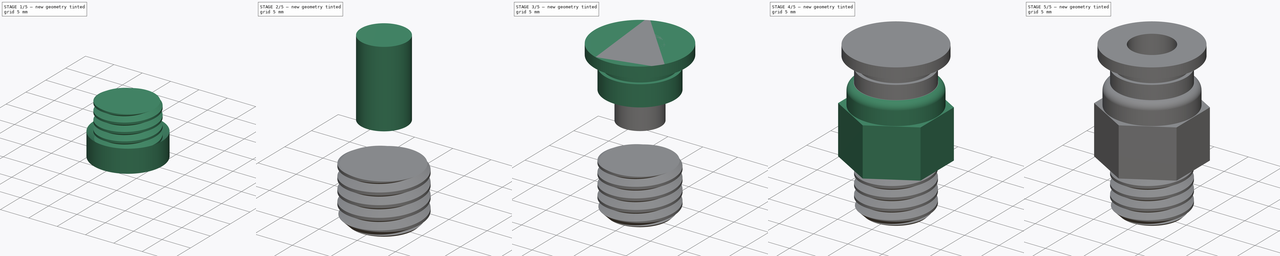
[diagram: build sequence overview — one tinted view per stage of 5, left to right]
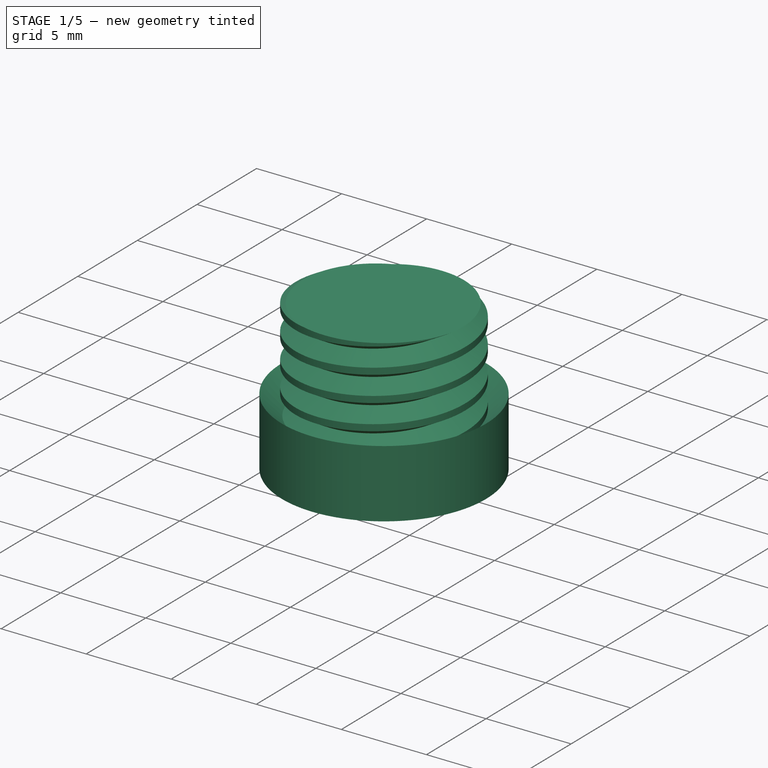
[diagram: stage 1 of 5 — iso view after this stage's code; geometry added in this stage tinted green]
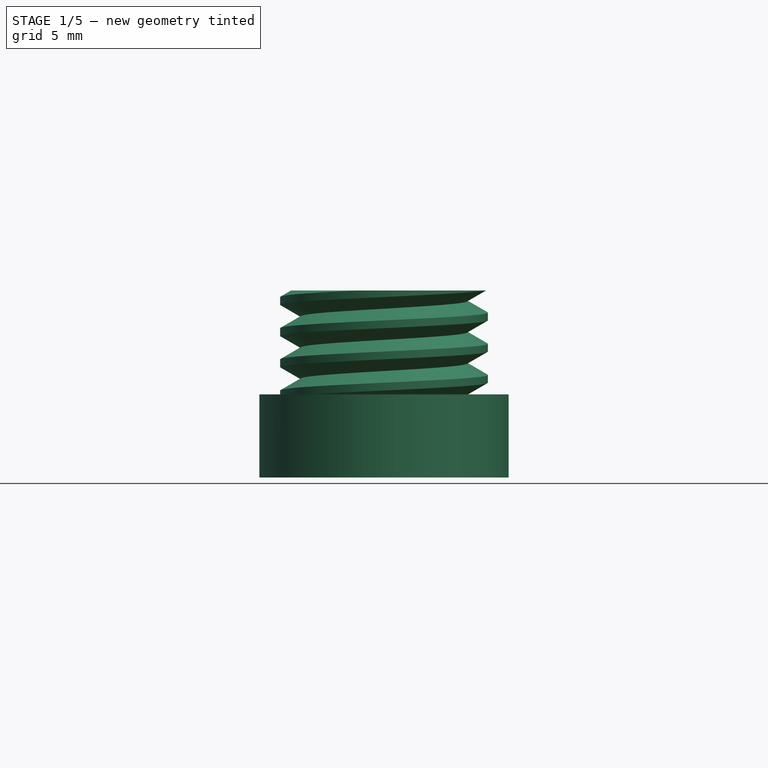
[diagram: stage 1 of 5 — front view after this stage's code; geometry added in this stage tinted green]
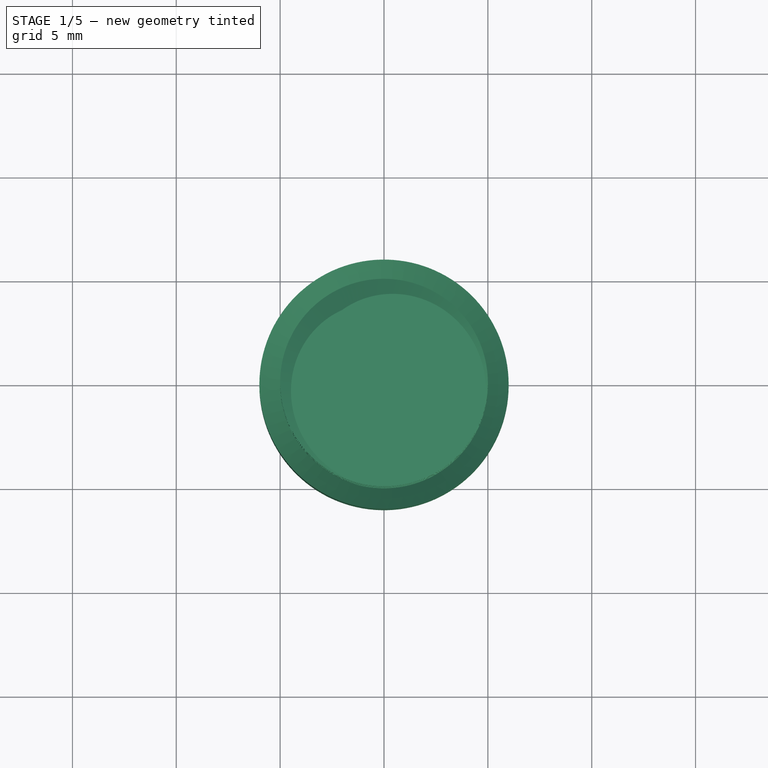
[diagram: stage 1 of 5 — top view after this stage's code; geometry added in this stage tinted green]
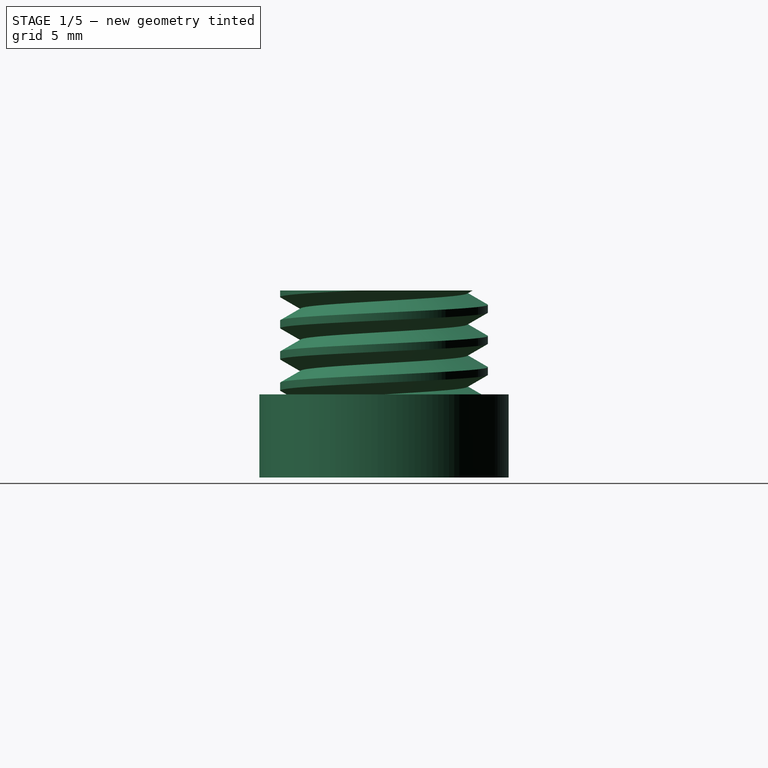
[diagram: stage 1 of 5 — right view after this stage's code; geometry added in this stage tinted green]
FCSTD DOCUMENT  (FreeCAD 0.14R3702 (Git))
Label: racor
License: CC-BY 3.0
LicenseURL: http://creativecommons.org/licenses/by/3.0/
objects: Part::Cylinder×7, Sketcher::SketchObject×4, Part::MultiFuse×4, Part::Cut×4, Part::Feature×2, PartDesign::Pad×1, PartDesign::Fillet×1, Part::Helix×1, Part::Sweep×1, PartDesign::Revolution×1, PartDesign::Pocket×1
note: 30 computed .brp shape members not serialized (recipe doc carries the construction recipe); baked Part::Feature solids carry a one-line shape summary decoded from their .brp

FEATURE [Part::Cylinder] Cylinder  label="Cilindro"
  Angle = 360
  Height = 7
  Radius = 5
FEATURE [Part::Helix] Helix  label="Helice"
  Angle = 0
  Height = 9
  LocalCoord = 0
  Pitch = 1.5
  Radius = 5
  Style = 1
FEATURE [Sketcher::SketchObject] Sketch002
  Placement = pos=(0,0,0) rot=(-1,0,0;4.71239rad)
  sketch-geometry (3):
    g0: LineSegment StartX=4.02596 StartY=0 StartZ=0 EndX=5.325 EndY=0.75 EndZ=0
    g1: LineSegment StartX=5.325 StartY=0.75 StartZ=0 EndX=5.325 EndY=-0.75 EndZ=0
    g2: LineSegment StartX=5.325 StartY=-0.75 StartZ=0 EndX=4.02596 EndY=0 EndZ=0
  constraints (9):
    c: Coincident(g0,g1)
    c: Coincident(g1,g2)
    c: Coincident(g2,g0)
    c: Vertical(g1)
    c: DistanceY(g1) = -1.5
    c: Equal(g0,g2)
    c: Angle(g2,g0) = 1.0472
    c: PointOnObject(g0,g-1)
    c: DistanceX(g-1,g0) = 5.325
FEATURE [Part::Sweep] Sweep
  Frenet = true
  Placement = pos=(0,0,-1) rot=(0,0,1;0rad)
  Sections = -> [Sketch002]
  Solid = true
  Spine = -> Helix [Edge1]
  Transition = 1
FEATURE [Part::Feature] Chamfer001  label="Terminada sin rosca"
  shape: bbox 13 x 13.86 x 22 mm, 29 faces (baked)
FEATURE [Part::Cut] Cut002
  Base = -> Cylinder
  Tool = -> Sweep
FEATURE [Sketcher::SketchObject] Sketch003
  Placement = pos=(0,0,0) rot=(-1,0,0;4.71239rad)
  sketch-geometry (3):
    g0: LineSegment StartX=4 StartY=0 StartZ=0 EndX=6 EndY=2 EndZ=0
    g1: LineSegment StartX=6 StartY=2 StartZ=0 EndX=6 EndY=-2 EndZ=0
    g2: LineSegment StartX=6 StartY=-2 StartZ=0 EndX=4 EndY=0 EndZ=0
  constraints (9):
    c: Coincident(g0,g1)
    c: Vertical(g1)
    c: Coincident(g1,g2)
    c: Coincident(g2,g0)
    c: Equal(g0,g2)
    c: Angle(g2,g0) = 1.5708
    c: DistanceY(g1) = -4
    c: PointOnObject(g0,g-1)
    c: DistanceX(g-1,g0) = 4
FEATURE [PartDesign::Revolution] Revolution
  Angle = 360
  Axis = (0,0,1)
  Base = (0,0,0)
  Placement = pos=(0,0,0) rot=(-1,0,0;4.71239rad)
  ReferenceAxis = -> Sketch003 [V_Axis]
  Reversed = true
  Sketch = -> Sketch003
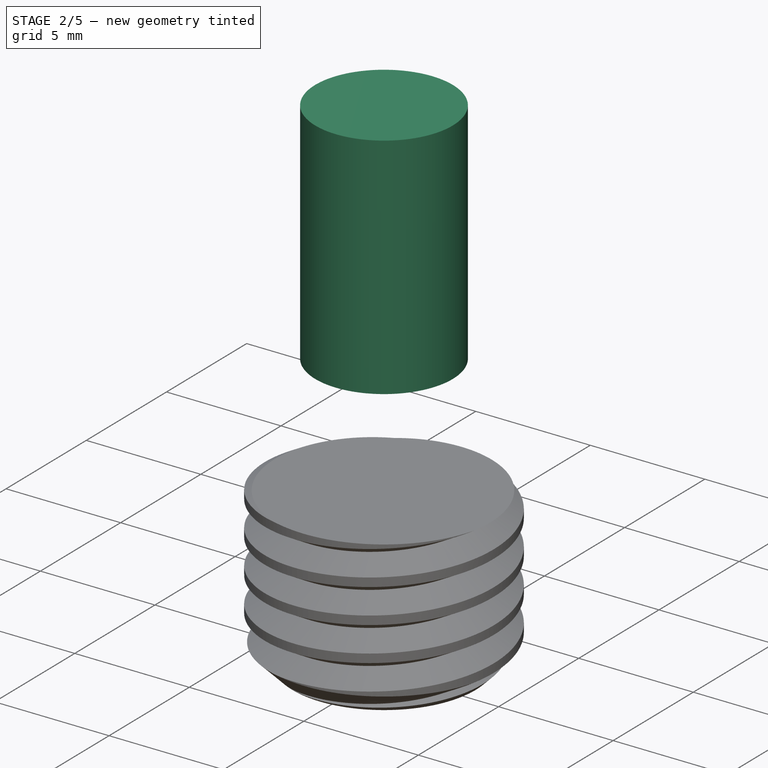
[diagram: stage 2 of 5 — iso view after this stage's code; geometry added in this stage tinted green]
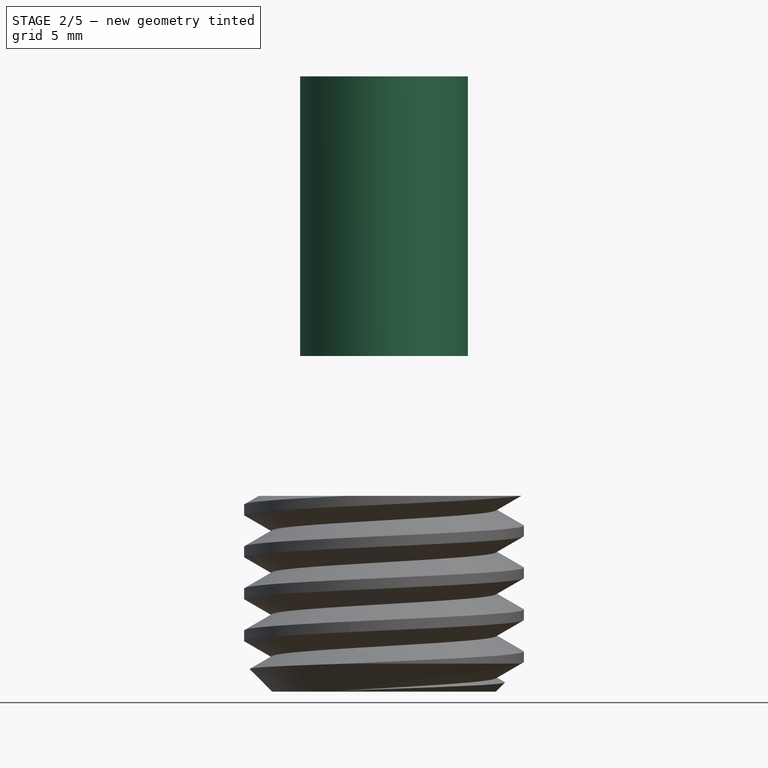
[diagram: stage 2 of 5 — front view after this stage's code; geometry added in this stage tinted green]
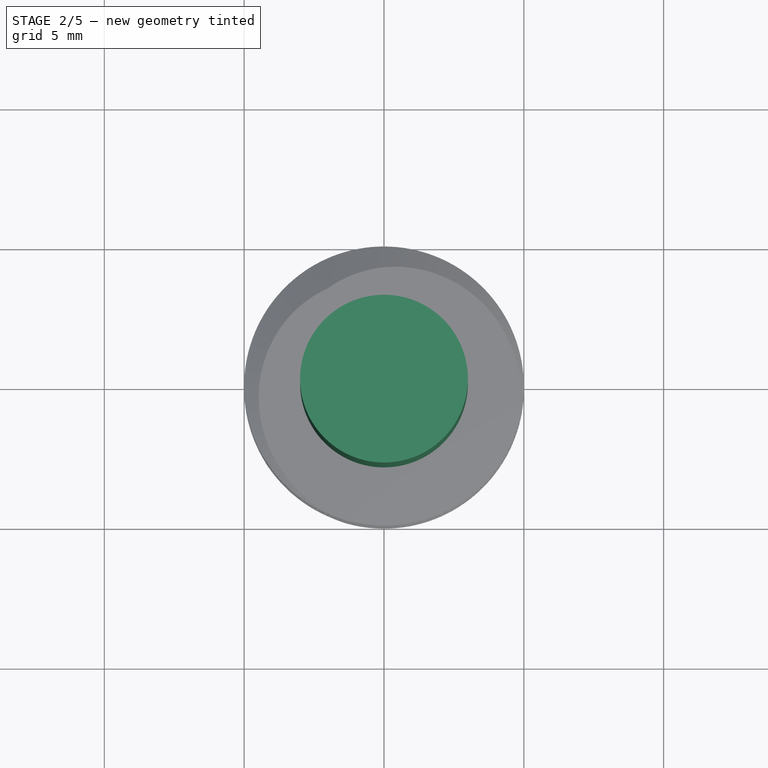
[diagram: stage 2 of 5 — top view after this stage's code; geometry added in this stage tinted green]
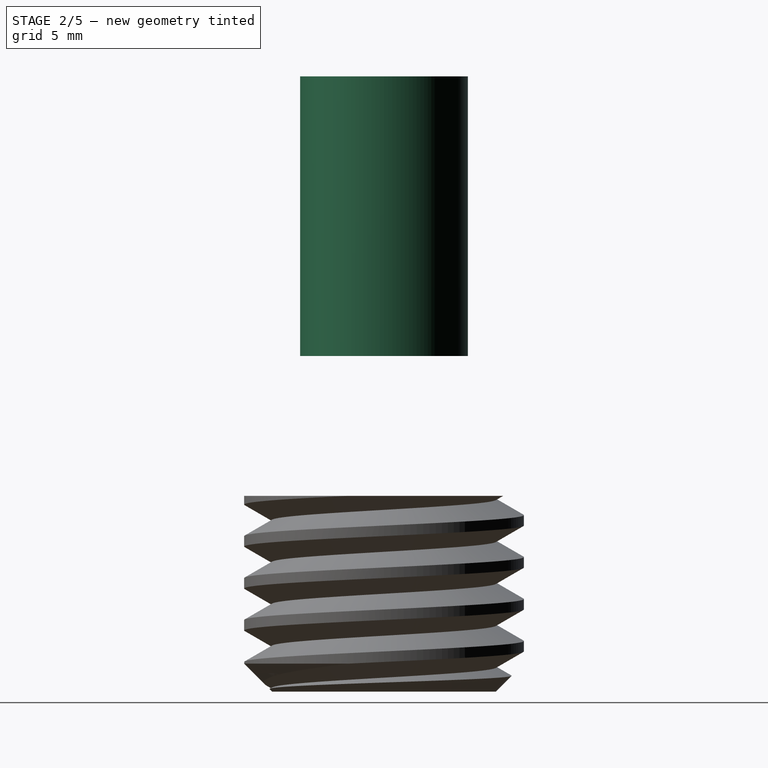
[diagram: stage 2 of 5 — right view after this stage's code; geometry added in this stage tinted green]
FEATURE [Part::Cylinder] Cylinder001  label="Cilindro001"
  Angle = 360
  Height = 4
  Placement = pos=(0,0,-1) rot=(0,0,1;0rad)
  Radius = 3
FEATURE [Part::Cylinder] Cylinder006  label="Cilindro006"
  Angle = 360
  Height = 10
  Placement = pos=(0,0,12) rot=(0,0,1;0rad)
  Radius = 3
FEATURE [Part::Cut] Cut
  Base = -> Cut002
  Tool = -> Cylinder001
FEATURE [Part::Cut] Cut003
  Base = -> Cut
  Tool = -> Revolution
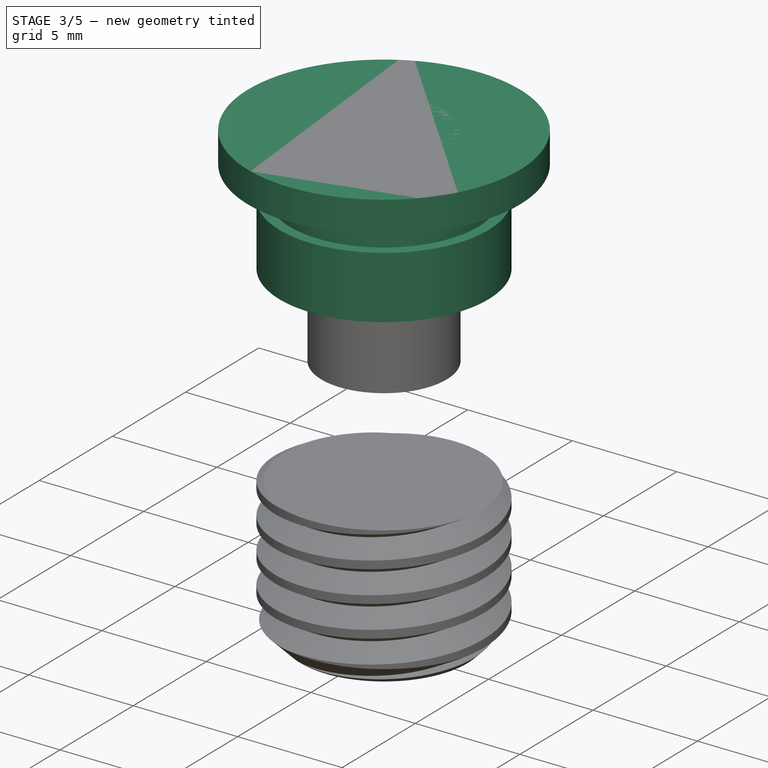
[diagram: stage 3 of 5 — iso view after this stage's code; geometry added in this stage tinted green]
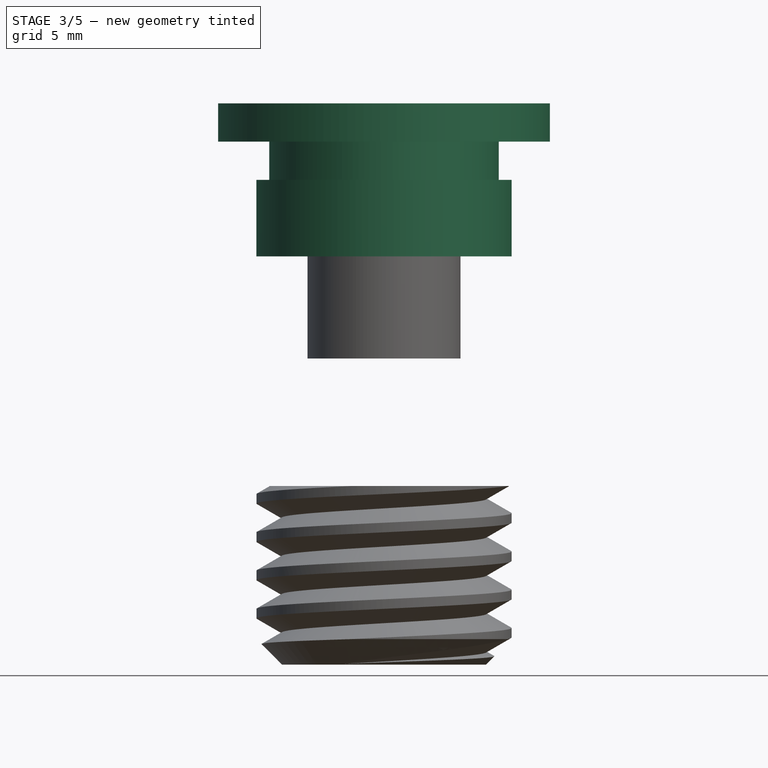
[diagram: stage 3 of 5 — front view after this stage's code; geometry added in this stage tinted green]
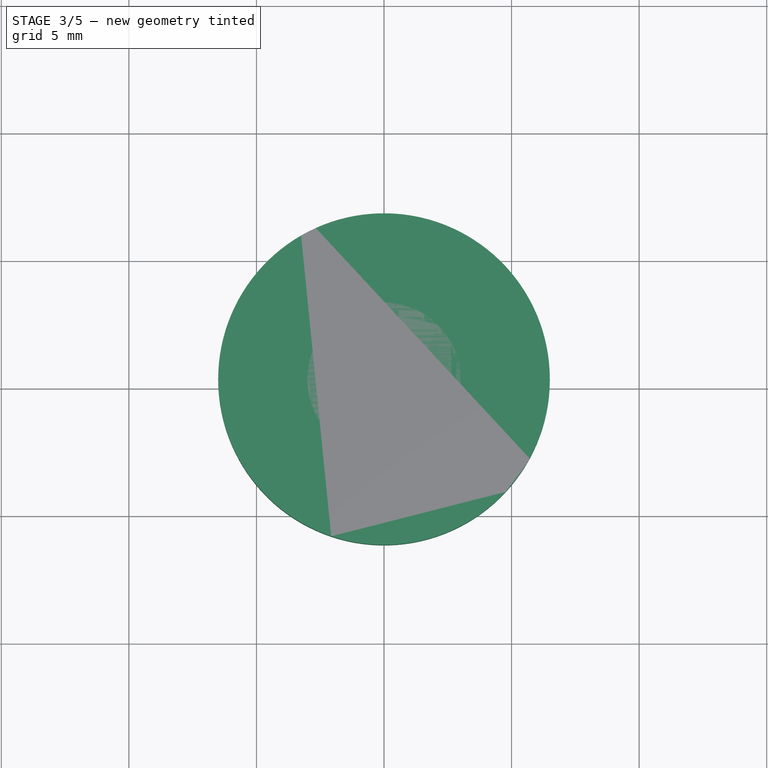
[diagram: stage 3 of 5 — top view after this stage's code; geometry added in this stage tinted green]
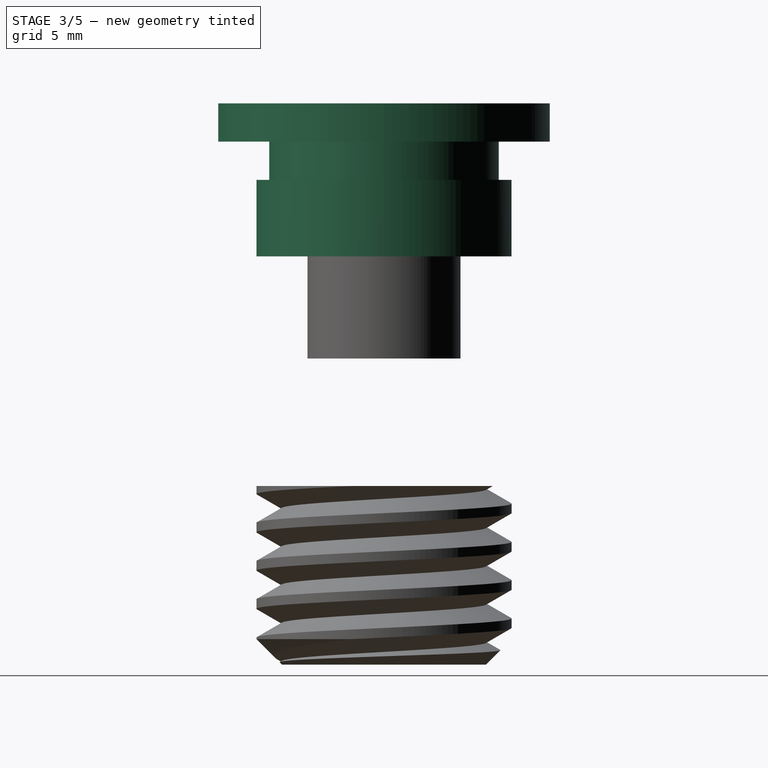
[diagram: stage 3 of 5 — right view after this stage's code; geometry added in this stage tinted green]
FEATURE [Part::Cylinder] Cylinder003  label="Cilindro003"
  Angle = 360
  Height = 3
  Placement = pos=(0,0,16) rot=(0,0,1;0rad)
  Radius = 5
FEATURE [Part::Cylinder] Cylinder004  label="Cilindro004"
  Angle = 360
  Height = 2.5
  Placement = pos=(0,0,18) rot=(0,0,1;0rad)
  Radius = 4.5
FEATURE [Part::Cylinder] Cylinder005  label="Cilindro005"
  Angle = 360
  Height = 1.5
  Placement = pos=(0,0,20.5) rot=(0,0,1;0rad)
  Radius = 6.5
FEATURE [Part::MultiFuse] Fusion001
  Shapes = -> [Cylinder004,Cylinder005]
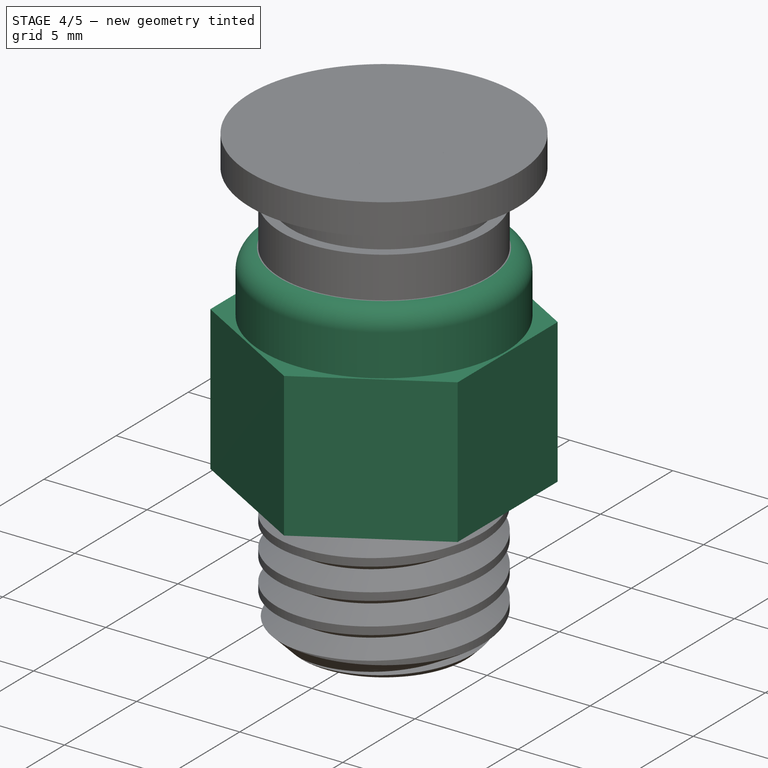
[diagram: stage 4 of 5 — iso view after this stage's code; geometry added in this stage tinted green]
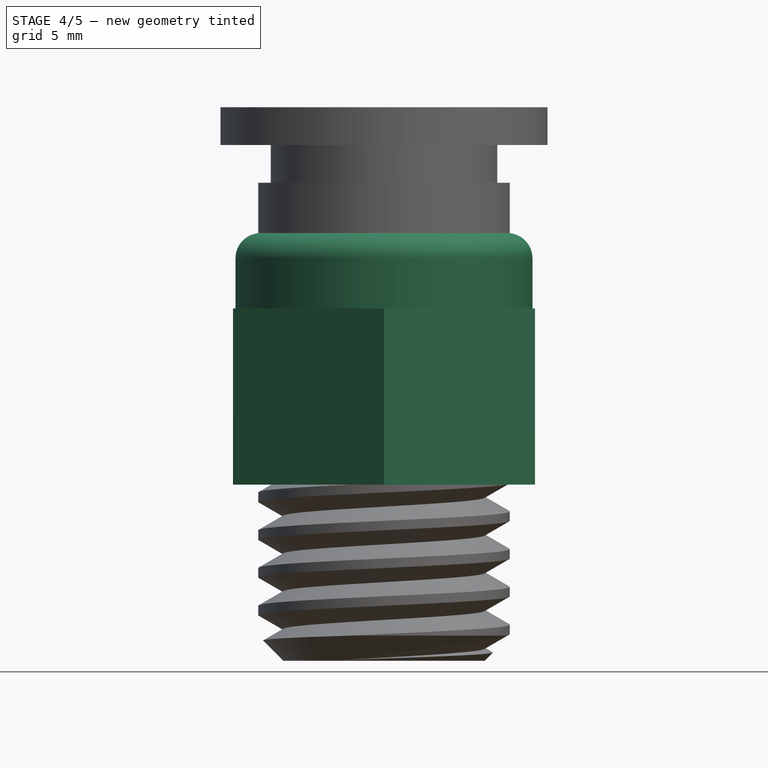
[diagram: stage 4 of 5 — front view after this stage's code; geometry added in this stage tinted green]
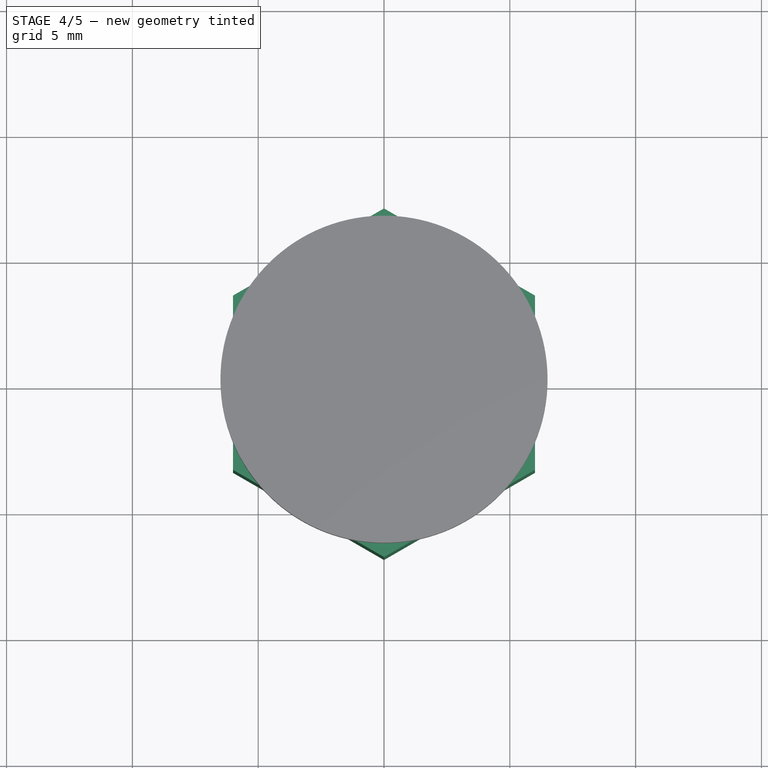
[diagram: stage 4 of 5 — top view after this stage's code; geometry added in this stage tinted green]
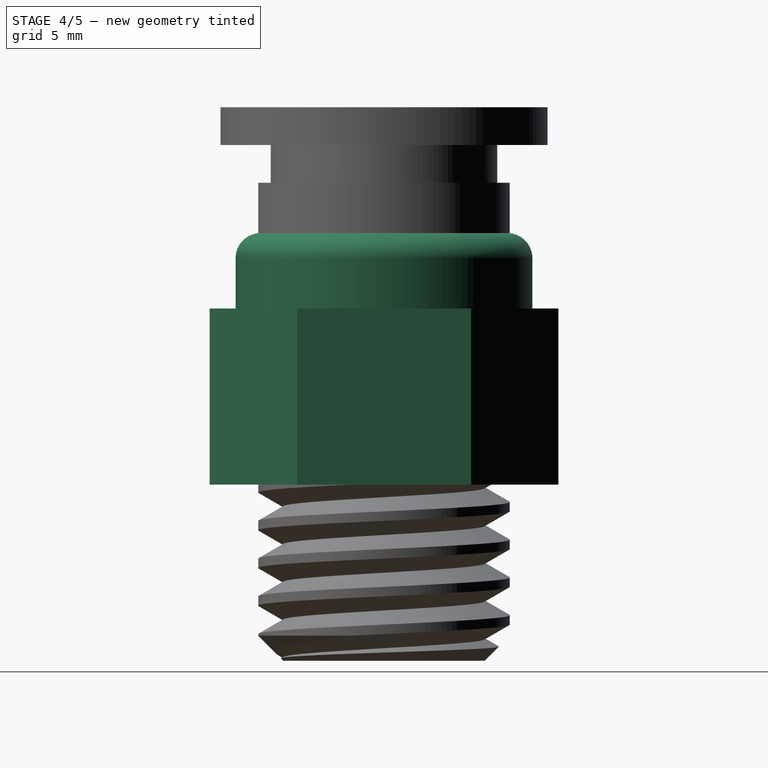
[diagram: stage 4 of 5 — right view after this stage's code; geometry added in this stage tinted green]
FEATURE [Sketcher::SketchObject] Sketch
  Placement = pos=(0,0,7) rot=(0,0,1;0rad)
  sketch-geometry (7):
    g0: LineSegment StartX=-6 StartY=3.4641 StartZ=0 EndX=0 EndY=6.9282 EndZ=0
    g1: LineSegment StartX=0 StartY=6.9282 StartZ=0 EndX=6 EndY=3.4641 EndZ=0
    g2: LineSegment StartX=6 StartY=3.4641 StartZ=0 EndX=6 EndY=-3.4641 EndZ=0
    g3: LineSegment StartX=6 StartY=-3.4641 StartZ=0 EndX=0 EndY=-6.9282 EndZ=0
    g4: LineSegment StartX=0 StartY=-6.9282 StartZ=0 EndX=-6 EndY=-3.4641 EndZ=0
    g5: LineSegment StartX=-6 StartY=-3.4641 StartZ=0 EndX=-6 EndY=3.4641 EndZ=0
    g6: LineSegment [constr] StartX=0 StartY=0 StartZ=0 EndX=-6 EndY=3.4641 EndZ=0
  constraints (20):
    c: PointOnObject(g0,g-2)
    c: Coincident(g0,g1)
    c: Coincident(g1,g2)
    c: Vertical(g2)
    c: Coincident(g2,g3)
    c: PointOnObject(g3,g-2)
    c: Coincident(g3,g4)
    c: Coincident(g4,g5)
    c: Coincident(g5,g0)
    c: Vertical(g5)
    c: Equal(g0,g1)
    c: Equal(g1,g2)
    c: Equal(g2,g3)
    c: Equal(g3,g4)
    c: Equal(g4,g5)
    c: Symmetric(g0,g3,g-1)
    c: DistanceX(g4,g2) = 12
    c: Coincident(g6,g-1)
    c: Coincident(g6,g0)
    c: Angle(g-2,g6) = 1.0472
FEATURE [PartDesign::Pad] Pad
  Length = 7
  Length2 = 100
  Placement = pos=(0,0,7) rot=(0,0,1;0rad)
  Sketch = -> Sketch
  Type = 0
FEATURE [Part::Cylinder] Cylinder002  label="Cilindro002"
  Angle = 360
  Height = 4
  Placement = pos=(0,0,13) rot=(0,0,1;0rad)
  Radius = 5.9
FEATURE [PartDesign::Fillet] Fillet
  Base = -> Cylinder002 [Edge1]
  Placement = pos=(0,0,13) rot=(0,0,1;0rad)
  Radius = 1
FEATURE [Part::MultiFuse] Fusion
  Shapes = -> [Pad,Fillet]
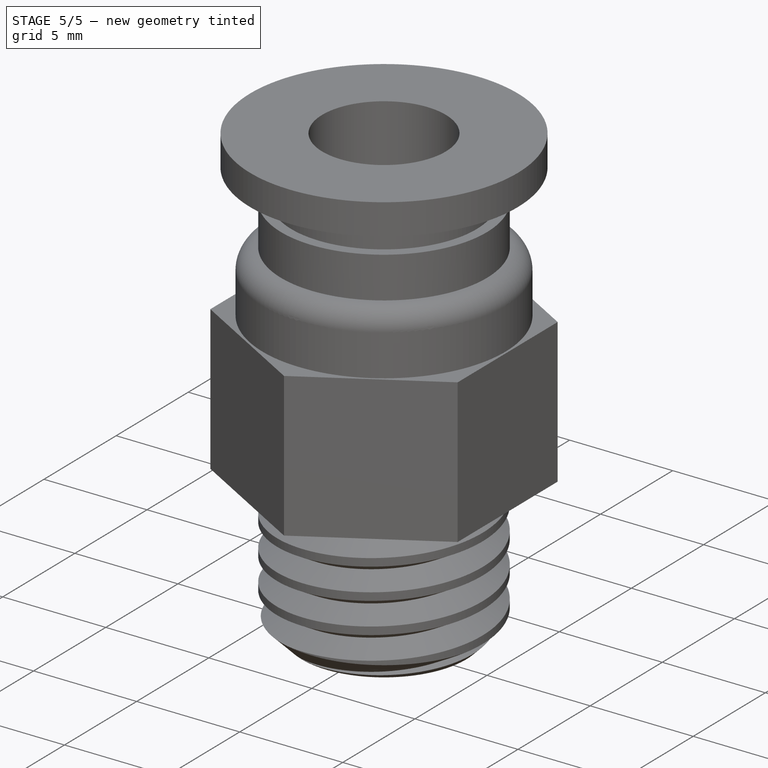
[diagram: stage 5 of 5 — iso view after this stage's code; geometry added in this stage tinted green]
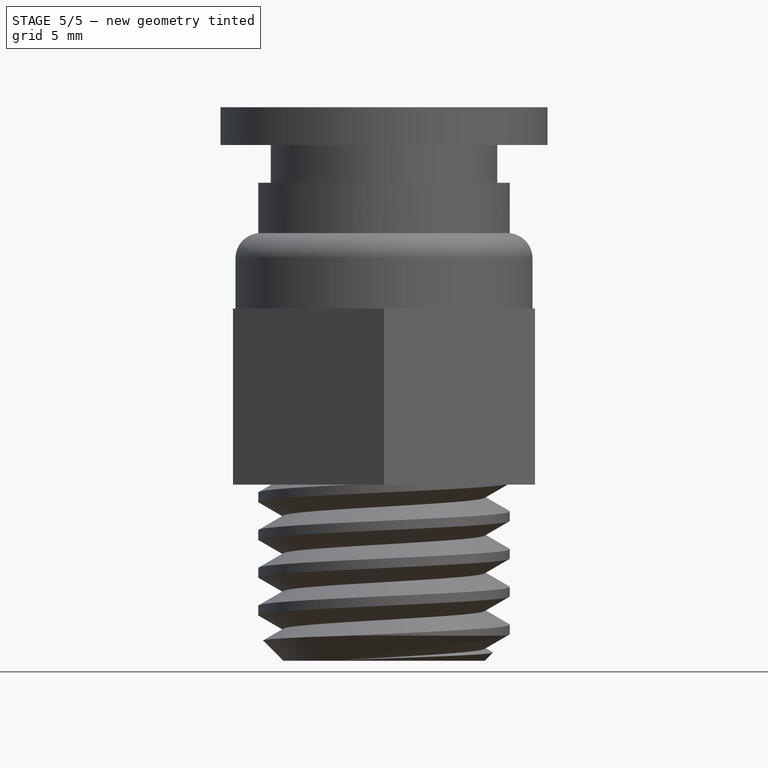
[diagram: stage 5 of 5 — front view after this stage's code; geometry added in this stage tinted green]
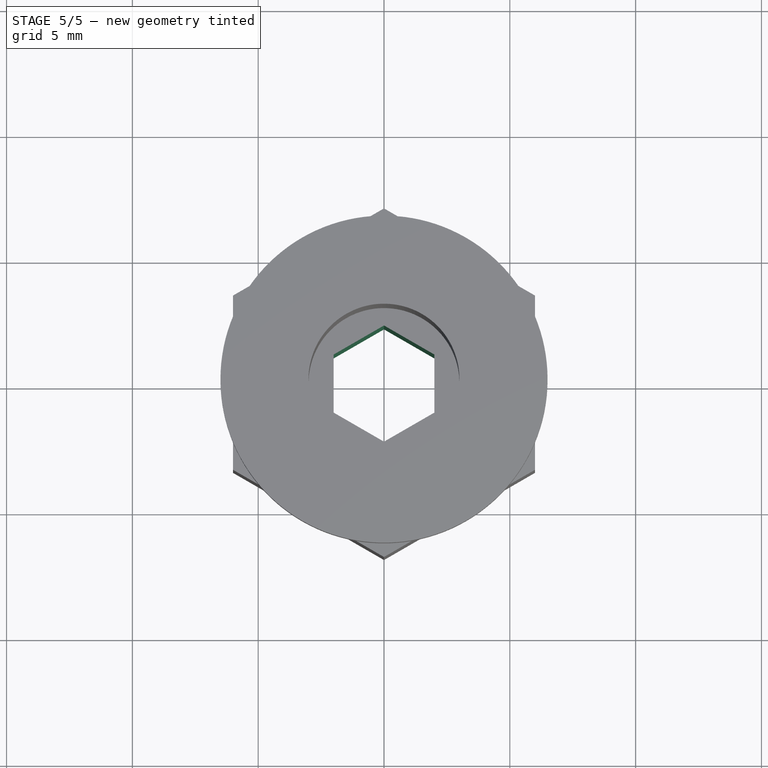
[diagram: stage 5 of 5 — top view after this stage's code; geometry added in this stage tinted green]
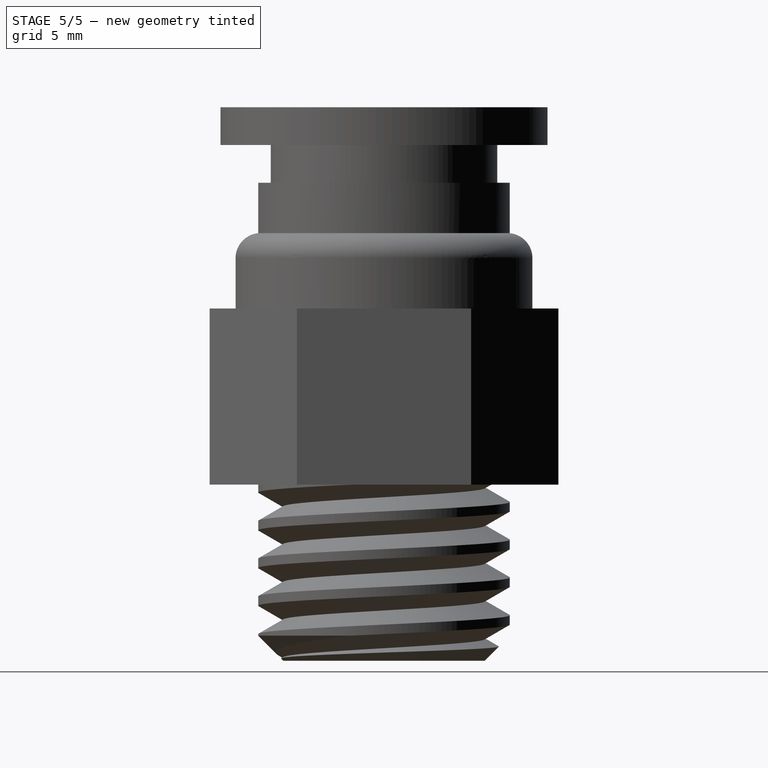
[diagram: stage 5 of 5 — right view after this stage's code; geometry added in this stage tinted green]
FEATURE [Part::MultiFuse] Fusion002
  Shapes = -> [Fusion,Cylinder003,Fusion001]
FEATURE [Part::Cut] Cut001
  Base = -> Fusion002
  Tool = -> Cylinder006
FEATURE [Part::MultiFuse] Fusion003
  Shapes = -> [Cut003,Cut001]
FEATURE [Sketcher::SketchObject] Sketch001
  Placement = pos=(0,0,3) rot=(1,0,0;3.14159rad)
  Support = -> Fusion003 [Face20]
  sketch-geometry (7):
    g0: LineSegment StartX=-2 StartY=1.1547 StartZ=0 EndX=0 EndY=2.3094 EndZ=0
    g1: LineSegment StartX=0 StartY=2.3094 StartZ=0 EndX=2 EndY=1.1547 EndZ=0
    g2: LineSegment StartX=2 StartY=1.1547 StartZ=0 EndX=2 EndY=-1.1547 EndZ=0
    g3: LineSegment StartX=2 StartY=-1.1547 StartZ=0 EndX=0 EndY=-2.3094 EndZ=0
    g4: LineSegment StartX=0 StartY=-2.3094 StartZ=0 EndX=-2 EndY=-1.1547 EndZ=0
    g5: LineSegment StartX=-2 StartY=-1.1547 StartZ=0 EndX=-2 EndY=1.1547 EndZ=0
    g6: LineSegment [constr] StartX=0 StartY=0 StartZ=0 EndX=-2 EndY=1.1547 EndZ=0
  constraints (20):
    c: PointOnObject(g0,g-2)
    c: Coincident(g0,g1)
    c: Coincident(g1,g2)
    c: Vertical(g2)
    c: Coincident(g2,g3)
    c: PointOnObject(g3,g-2)
    c: Coincident(g3,g4)
    c: Coincident(g4,g5)
    c: Coincident(g5,g0)
    c: Vertical(g5)
    c: Equal(g5,g0)
    c: Equal(g0,g1)
    c: Equal(g1,g2)
    c: Equal(g2,g3)
    c: Equal(g3,g4)
    c: Coincident(g6,g-1)
    c: Coincident(g6,g0)
    c: Angle(g-2,g6) = 1.0472
    c: Symmetric(g0,g3,g-1)
    c: DistanceX(g4,g2) = 4
FEATURE [PartDesign::Pocket] Pocket  label="Terminada con rosca 1,5"
  Length = 5
  Sketch = -> Sketch001
  Type = 1
FEATURE [Part::Feature] Pocket001  label="Refinada con rosca"
  shape: bbox 14.51 x 14.51 x 23.75 mm, 35 faces (baked)
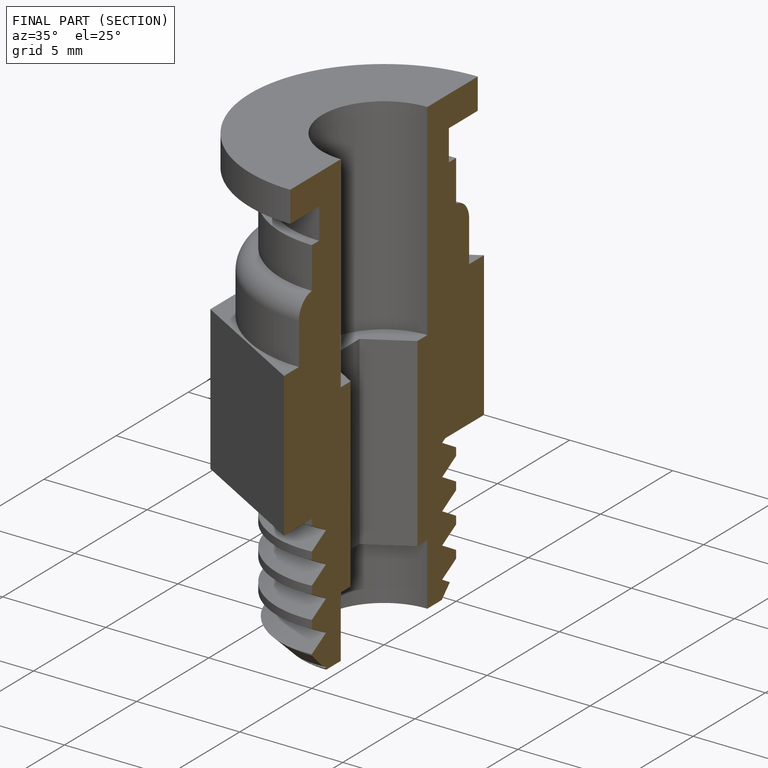
[diagram: finished part — half-section view (interior)]
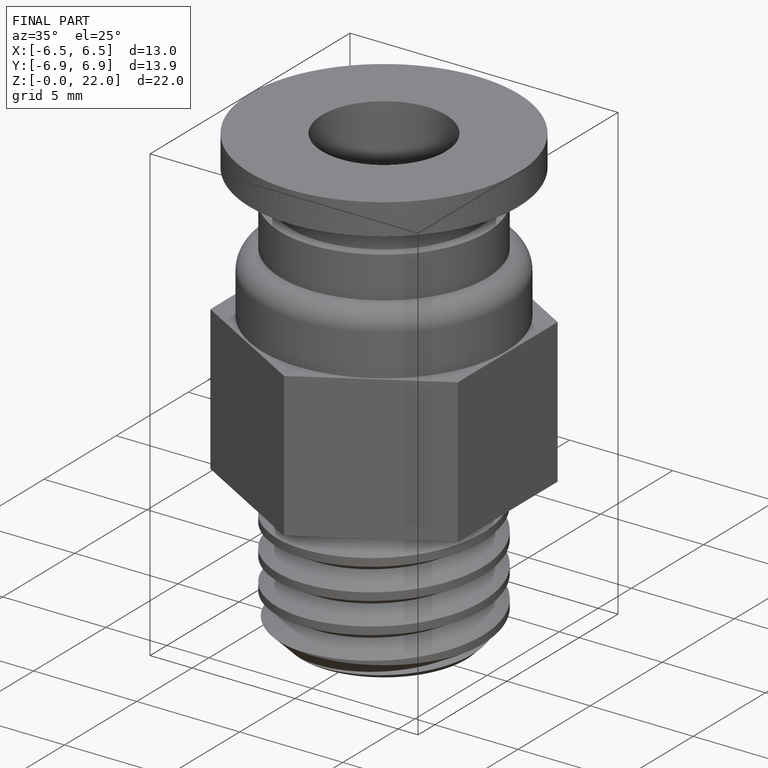
[diagram: finished part — iso view with bounding-box wireframe]
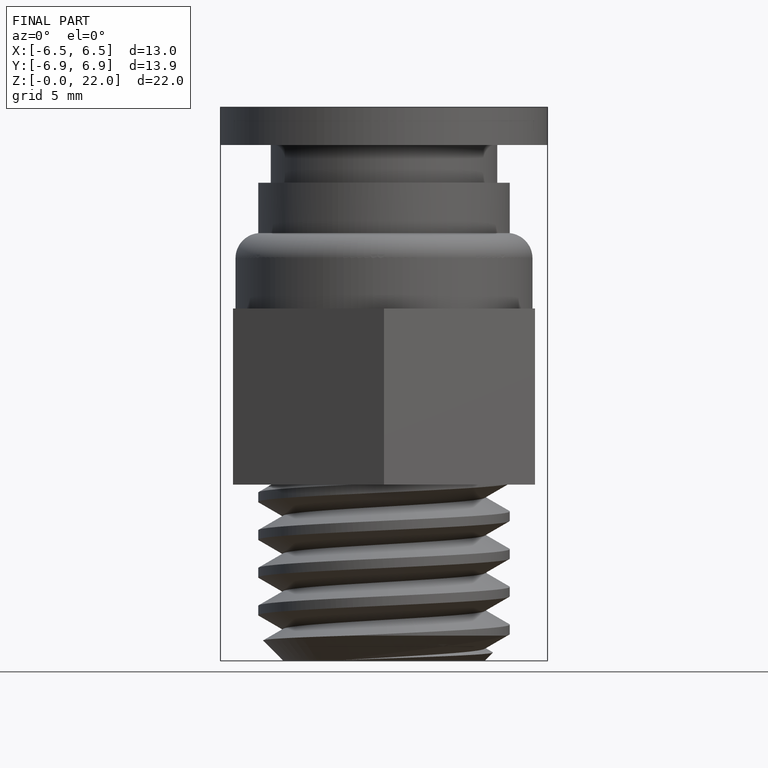
[diagram: finished part — front view with bounding-box wireframe]
